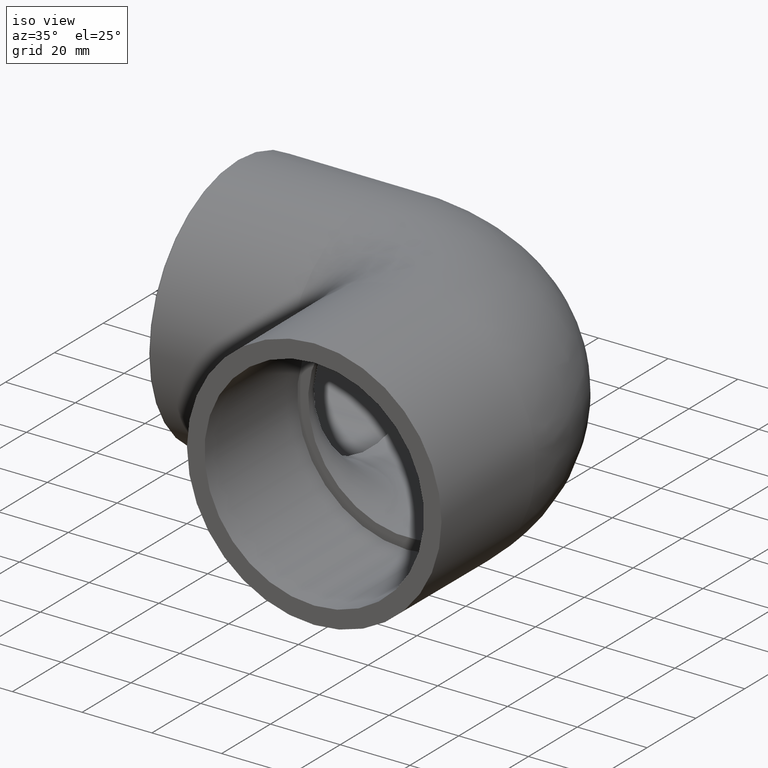
[diagram: clean part render]
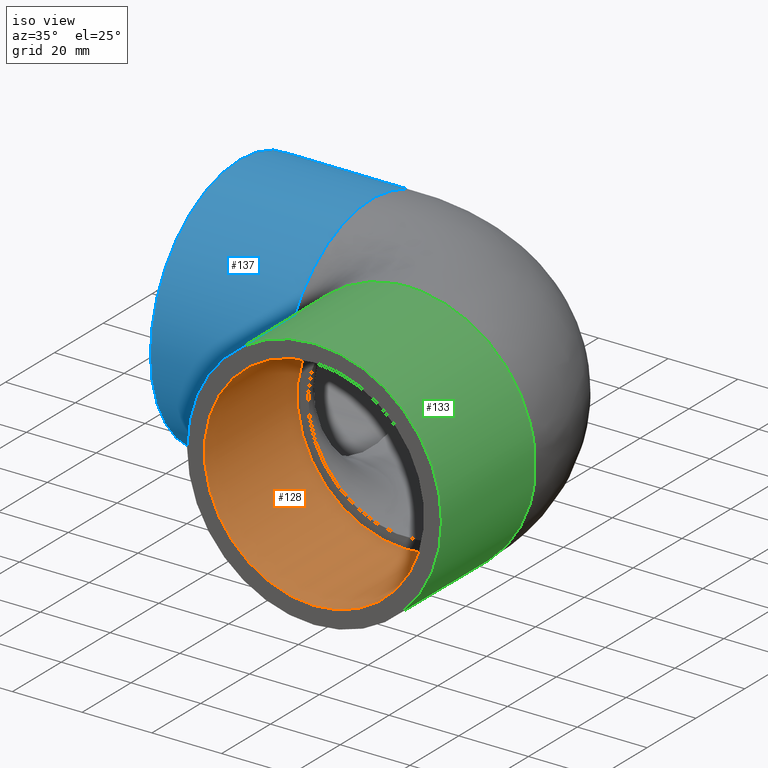
[diagram: same view with three faces highlighted in distinct colors, each labeled with its STEP entity id]
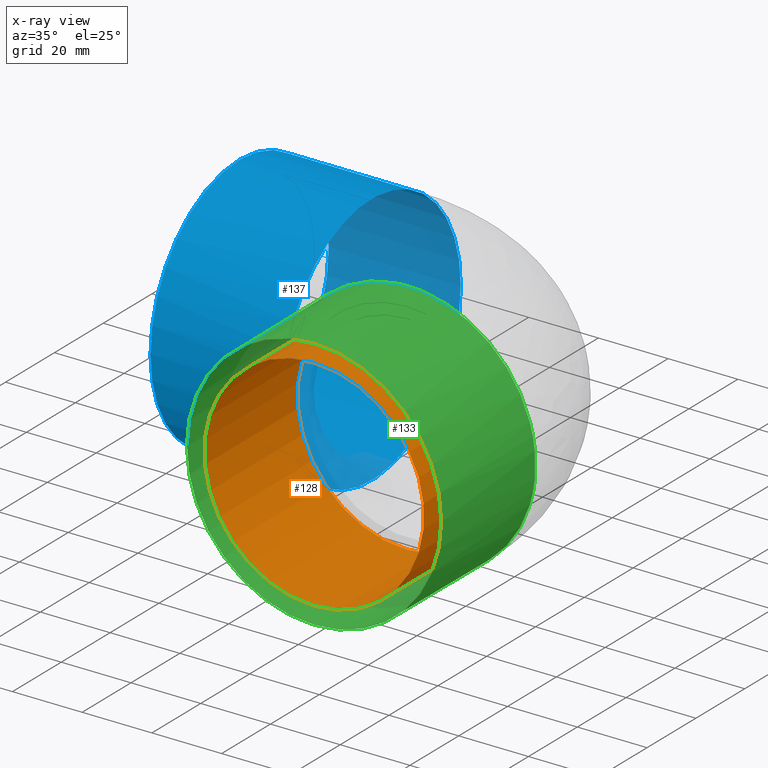
[diagram: x-ray of the same camera — body ghosted, the three highlighted faces saturated]
A machine part, iso view with three faces highlighted in distinct colors.
The next image is the same camera in x-ray (body ghosted, the three faces saturated) — at least one of them is partly hidden behind the body in this view.
Their STEP definitions:

[orange] entity #128 — the highlighted cylindrical surface (bore or boss wall) has radius 31.5 mm, axis along (0, 1, 0).
#21=CYLINDRICAL_SURFACE('',#143,31.5);
#26=FACE_BOUND('',#49,.T.);
#36=FACE_OUTER_BOUND('',#48,.T.);
#48=EDGE_LOOP('',(#103));
#49=EDGE_LOOP('',(#104));
#69=CIRCLE('',#144,31.5);
#70=CIRCLE('',#145,31.5);
#80=VERTEX_POINT('',#215);
#81=VERTEX_POINT('',#217);
#91=EDGE_CURVE('',#80,#80,#69,.T.);
#92=EDGE_CURVE('',#81,#81,#70,.T.);
#103=ORIENTED_EDGE('',*,*,#91,.T.);
#104=ORIENTED_EDGE('',*,*,#92,.F.);
#128=ADVANCED_FACE('',(#36,#26),#21,.F.);
#143=AXIS2_PLACEMENT_3D('',#214,#170,#171);
#144=AXIS2_PLACEMENT_3D('',#216,#172,#173);
#145=AXIS2_PLACEMENT_3D('',#218,#174,#175);
#170=DIRECTION('center_axis',(6.12323399573677E-17,1.,0.));
#171=DIRECTION('ref_axis',(0.,0.,-1.));
#172=DIRECTION('center_axis',(6.12323399573677E-17,1.,0.));
#173=DIRECTION('ref_axis',(0.,0.,-1.));
#174=DIRECTION('center_axis',(6.12323399573677E-17,1.,0.));
#175=DIRECTION('ref_axis',(0.,0.,-1.));
#214=CARTESIAN_POINT('Origin',(-4.50057698686652E-15,-73.5,0.));
#215=CARTESIAN_POINT('',(-6.03138548580072E-15,-35.5,31.5));
#216=CARTESIAN_POINT('Origin',(-2.17374806848655E-15,-35.5,0.));
#217=CARTESIAN_POINT('',(-8.35821440418069E-15,-73.5,31.5));
#218=CARTESIAN_POINT('Origin',(-4.50057698686652E-15,-73.5,0.));

[blue] entity #137 — the highlighted cylindrical surface (bore or boss wall) has radius 36.5 mm, axis along (1, 0, 0).
#15=ELLIPSE('',#154,51.618795026618,36.5);
#24=CYLINDRICAL_SURFACE('',#161,36.5);
#34=FACE_BOUND('',#66,.T.);
#45=FACE_OUTER_BOUND('',#65,.T.);
#65=EDGE_LOOP('',(#122,#123));
#66=EDGE_LOOP('',(#124));
#73=CIRCLE('',#151,36.5);
#77=CIRCLE('',#159,36.5);
#84=VERTEX_POINT('',#253);
#85=VERTEX_POINT('',#254);
#88=VERTEX_POINT('',#265);
#95=EDGE_CURVE('',#84,#85,#73,.T.);
#97=EDGE_CURVE('',#84,#85,#15,.T.);
#100=EDGE_CURVE('',#88,#88,#77,.T.);
#122=ORIENTED_EDGE('',*,*,#97,.T.);
#123=ORIENTED_EDGE('',*,*,#95,.F.);
#124=ORIENTED_EDGE('',*,*,#100,.F.);
#137=ADVANCED_FACE('',(#45,#34),#24,.T.);
#151=AXIS2_PLACEMENT_3D('',#255,#186,#187);
#154=AXIS2_PLACEMENT_3D('',#258,#192,#193);
#159=AXIS2_PLACEMENT_3D('',#266,#202,#203);
#161=AXIS2_PLACEMENT_3D('',#268,#206,#207);
#186=DIRECTION('center_axis',(1.,0.,0.));
#187=DIRECTION('ref_axis',(0.,0.,-1.));
#192=DIRECTION('center_axis',(-0.707106781186548,0.707106781186548,0.));
#193=DIRECTION('ref_axis',(-0.707106781186548,-0.707106781186547,0.));
#202=DIRECTION('center_axis',(-1.,0.,0.));
#203=DIRECTION('ref_axis',(0.,-1.,1.83697019872103E-16));
#206=DIRECTION('center_axis',(1.,0.,0.));
#207=DIRECTION('ref_axis',(0.,1.,0.));
#253=CARTESIAN_POINT('',(-35.,-35.,-10.356157588604));
#254=CARTESIAN_POINT('',(-35.,-35.,10.356157588604));
#255=CARTESIAN_POINT('Origin',(-35.,0.,0.));
#258=CARTESIAN_POINT('Origin',(-4.93038065763132E-31,-8.88178419700125E-15,
0.));
#265=CARTESIAN_POINT('',(-72.87,36.5,-1.11749020422196E-14));
#266=CARTESIAN_POINT('Origin',(-72.87,0.,0.));
#268=CARTESIAN_POINT('Origin',(-54.25,0.,0.));

[green] entity #133 — the highlighted cylindrical surface (bore or boss wall) has radius 36.5 mm, axis along (0, 1, 0).
#15=ELLIPSE('',#154,51.618795026618,36.5);
#23=CYLINDRICAL_SURFACE('',#153,36.5);
#30=FACE_BOUND('',#58,.T.);
#41=FACE_OUTER_BOUND('',#57,.T.);
#57=EDGE_LOOP('',(#113,#114));
#58=EDGE_LOOP('',(#115));
#74=CIRCLE('',#152,36.5);
#75=CIRCLE('',#155,36.5);
#84=VERTEX_POINT('',#253);
#85=VERTEX_POINT('',#254);
#86=VERTEX_POINT('',#259);
#96=EDGE_CURVE('',#85,#84,#74,.T.);
#97=EDGE_CURVE('',#84,#85,#15,.T.);
#98=EDGE_CURVE('',#86,#86,#75,.T.);
#113=ORIENTED_EDGE('',*,*,#97,.F.);
#114=ORIENTED_EDGE('',*,*,#96,.F.);
#115=ORIENTED_EDGE('',*,*,#98,.T.);
#133=ADVANCED_FACE('',(#41,#30),#23,.T.);
#152=AXIS2_PLACEMENT_3D('',#256,#188,#189);
#153=AXIS2_PLACEMENT_3D('',#257,#190,#191);
#154=AXIS2_PLACEMENT_3D('',#258,#192,#193);
#155=AXIS2_PLACEMENT_3D('',#260,#194,#195);
#188=DIRECTION('center_axis',(6.12323399573677E-17,1.,0.));
#189=DIRECTION('ref_axis',(0.,0.,-1.));
#190=DIRECTION('center_axis',(6.12323399573677E-17,1.,0.));
#191=DIRECTION('ref_axis',(-1.,6.12323399573677E-17,0.));
#192=DIRECTION('center_axis',(-0.707106781186548,0.707106781186548,0.));
#193=DIRECTION('ref_axis',(-0.707106781186548,-0.707106781186547,0.));
#194=DIRECTION('center_axis',(6.12323399573677E-17,1.,0.));
#195=DIRECTION('ref_axis',(0.,0.,-1.));
#253=CARTESIAN_POINT('',(-35.,-35.,-10.356157588604));
#254=CARTESIAN_POINT('',(-35.,-35.,10.356157588604));
#256=CARTESIAN_POINT('Origin',(-2.14313189850787E-15,-35.,0.));
#257=CARTESIAN_POINT('Origin',(-3.3218544426872E-15,-54.25,0.));
#258=CARTESIAN_POINT('Origin',(-4.93038065763132E-31,-8.88178419700125E-15,
0.));
#259=CARTESIAN_POINT('',(-36.5,-73.5,0.));
#260=CARTESIAN_POINT('Origin',(-4.50057698686652E-15,-73.5,0.));